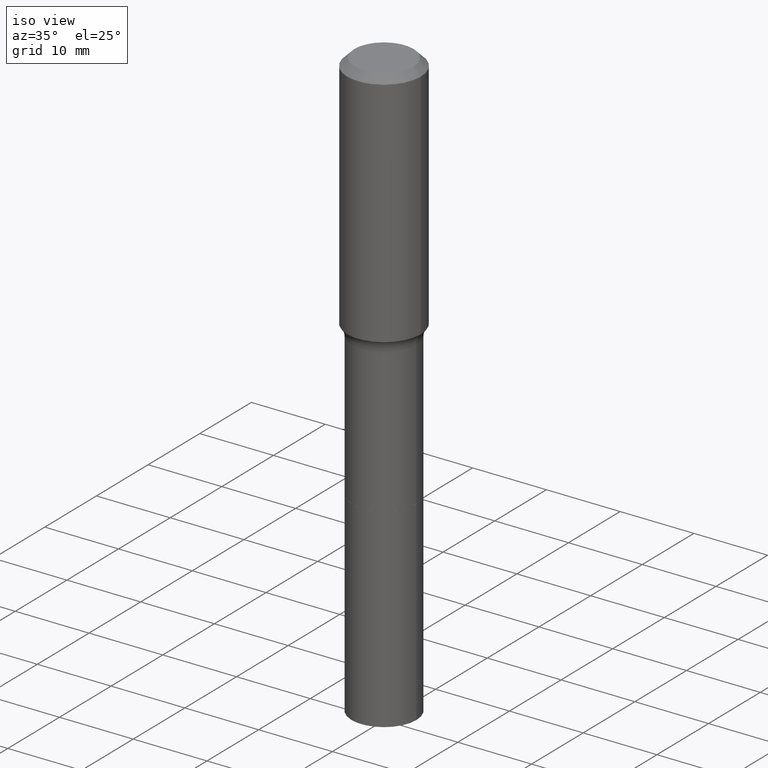
[diagram: clean part render]
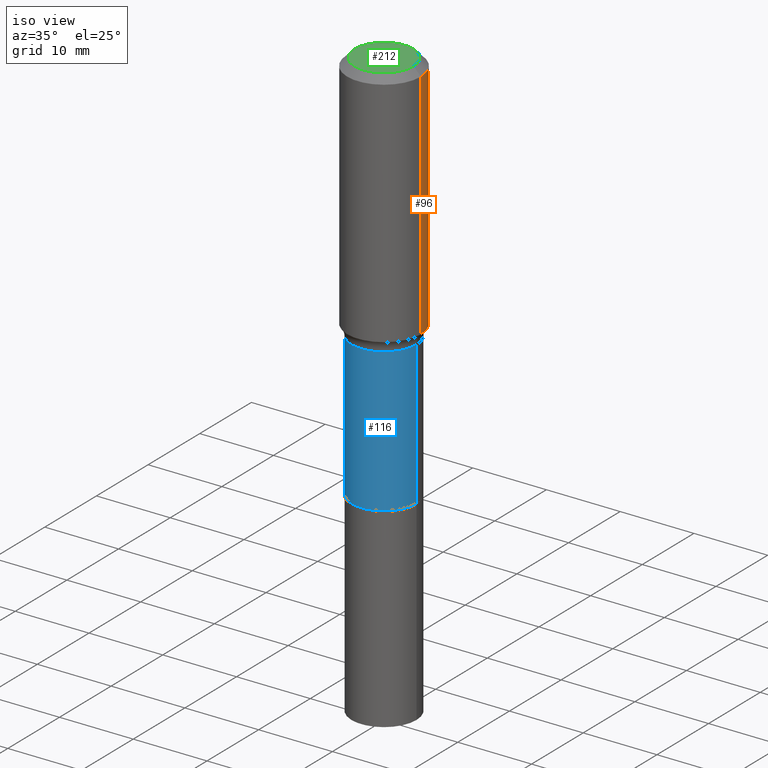
[diagram: same view with three faces highlighted in distinct colors, each labeled with its STEP entity id]
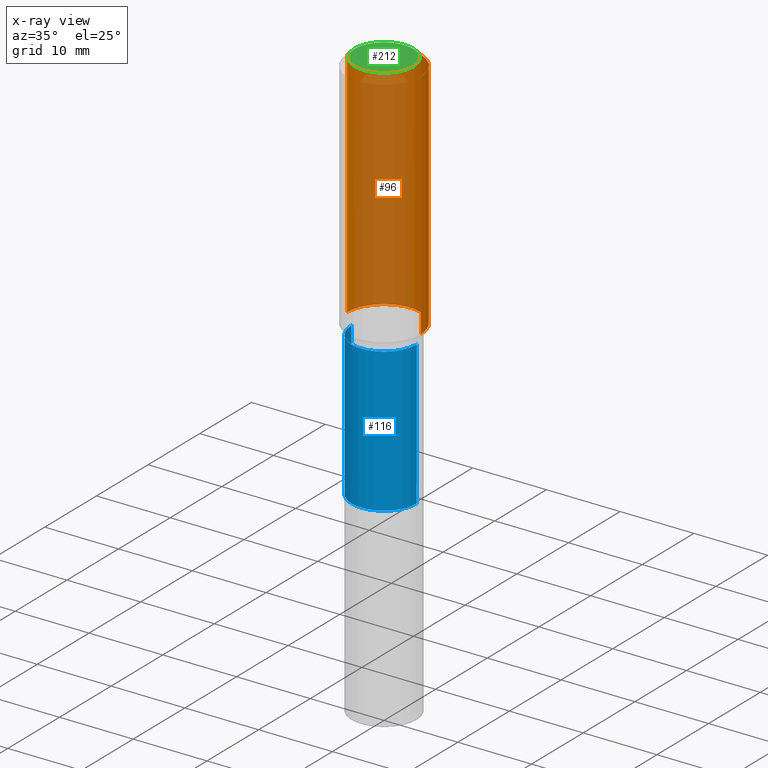
[diagram: x-ray of the same camera — body ghosted, the three highlighted faces saturated]
A machine part, iso view with three faces highlighted in distinct colors.
The next image is the same camera in x-ray (body ghosted, the three faces saturated) — at least one of them is partly hidden behind the body in this view.
Their STEP definitions:

[orange] entity #96 — the highlighted cylindrical surface (partial cylindrical patch) has radius 5 mm, axis along (-0, 0, 1).
#6 = EDGE_CURVE ( 'NONE', #451, #30, #44, .T. ) ;
#7 = LINE ( 'NONE', #236, #80 ) ;
#11 = DIRECTION ( 'NONE',  ( -2.445468806185136597E-29, 3.491481338843145583E-15, 1.000000000000000000 ) ) ;
#30 = VERTEX_POINT ( 'NONE', #361 ) ;
#44 = CIRCLE ( 'NONE', #323, 0.1968500000000000527 ) ;
#71 = CARTESIAN_POINT ( 'NONE',  ( -0.1968500000000001915, -3.076604992838836493E-15, -1.281779260394221964 ) ) ;
#80 = VECTOR ( 'NONE', #317, 39.37007874015748143 ) ;
#92 = DIRECTION ( 'NONE',  ( 1.000000000000000000, -6.982962677686266711E-15, 0.000000000000000000 ) ) ;
#95 = DIRECTION ( 'NONE',  ( -2.445468806185136877E-29, 3.491481338843145188E-15, 1.000000000000000000 ) ) ;
#96 = ADVANCED_FACE ( 'NONE', ( #292 ), #136, .T. ) ;
#97 = DIRECTION ( 'NONE',  ( -2.445468806185136597E-29, 3.491481338843145583E-15, 1.000000000000000000 ) ) ;
#118 = EDGE_CURVE ( 'NONE', #205, #30, #502, .T. ) ;
#128 = CARTESIAN_POINT ( 'NONE',  ( 0.1968500000000000527, -1.512055823412797583E-15, -0.03937000000000030059 ) ) ;
#136 = CYLINDRICAL_SURFACE ( 'NONE', #370, 0.1968500000000001082 ) ;
#155 = EDGE_CURVE ( 'NONE', #410, #205, #177, .T. ) ;
#165 = ORIENTED_EDGE ( 'NONE', *, *, #155, .T. ) ;
#176 = DIRECTION ( 'NONE',  ( -2.445468806185136597E-29, 3.491481338843145583E-15, 1.000000000000000000 ) ) ;
#177 = CIRCLE ( 'NONE', #267, 0.1968500000000001915 ) ;
#198 = ORIENTED_EDGE ( 'NONE', *, *, #118, .T. ) ;
#205 = VERTEX_POINT ( 'NONE', #71 ) ;
#207 = VECTOR ( 'NONE', #95, 39.37007874015748143 ) ;
#236 = CARTESIAN_POINT ( 'NONE',  ( 0.1968500000000001082, -1.374596203102542397E-15, 9.598753983154305062E-30 ) ) ;
#256 = ORIENTED_EDGE ( 'NONE', *, *, #6, .F. ) ;
#267 = AXIS2_PLACEMENT_3D ( 'NONE', #460, #97, #92 ) ;
#292 = FACE_OUTER_BOUND ( 'NONE', #516, .T. ) ;
#317 = DIRECTION ( 'NONE',  ( -2.445468806185136877E-29, 3.491481338843145188E-15, 1.000000000000000000 ) ) ;
#322 = CARTESIAN_POINT ( 'NONE',  ( 0.000000000000000000, 0.000000000000000000, 0.000000000000000000 ) ) ;
#323 = AXIS2_PLACEMENT_3D ( 'NONE', #488, #11, #403 ) ;
#326 = CARTESIAN_POINT ( 'NONE',  ( -0.1968500000000001082, 1.398703375343757985E-15, -9.682923725166787881E-30 ) ) ;
#361 = CARTESIAN_POINT ( 'NONE',  ( -0.1968500000000000527, -9.076806189026671431E-16, -0.03937000000000030059 ) ) ;
#370 = AXIS2_PLACEMENT_3D ( 'NONE', #322, #176, #376 ) ;
#376 = DIRECTION ( 'NONE',  ( 1.000000000000000000, -6.982962677686266711E-15, 4.876176775795935793E-29 ) ) ;
#378 = EDGE_CURVE ( 'NONE', #410, #451, #7, .T. ) ;
#403 = DIRECTION ( 'NONE',  ( 1.000000000000000000, -6.982962677686266711E-15, 0.000000000000000000 ) ) ;
#410 = VERTEX_POINT ( 'NONE', #461 ) ;
#451 = VERTEX_POINT ( 'NONE', #128 ) ;
#460 = CARTESIAN_POINT ( 'NONE',  ( 3.134551197709125186E-29, -4.475308368182595464E-15, -1.281779260394221964 ) ) ;
#461 = CARTESIAN_POINT ( 'NONE',  ( 0.1968500000000001915, -5.849904571285137861E-15, -1.281779260394221964 ) ) ;
#465 = ORIENTED_EDGE ( 'NONE', *, *, #378, .F. ) ;
#488 = CARTESIAN_POINT ( 'NONE',  ( 9.627810689950955906E-31, -1.374596203102556794E-16, -0.03937000000000030059 ) ) ;
#502 = LINE ( 'NONE', #326, #207 ) ;
#516 = EDGE_LOOP ( 'NONE', ( #165, #198, #256, #465 ) ) ;

[blue] entity #116 — the highlighted cylindrical surface (partial cylindrical patch) has radius 4.4005 mm, axis along (-0, 0, 1).
#13 = VERTEX_POINT ( 'NONE', #356 ) ;
#54 = CYLINDRICAL_SURFACE ( 'NONE', #408, 0.1732499999999999318 ) ;
#74 = ORIENTED_EDGE ( 'NONE', *, *, #459, .T. ) ;
#94 = DIRECTION ( 'NONE',  ( 1.000000000000000000, -6.982962677686266711E-15, 0.000000000000000000 ) ) ;
#98 = LINE ( 'NONE', #330, #316 ) ;
#116 = ADVANCED_FACE ( 'NONE', ( #172 ), #54, .T. ) ;
#121 = VECTOR ( 'NONE', #210, 39.37007874015748143 ) ;
#132 = DIRECTION ( 'NONE',  ( -2.445468806185136877E-29, 3.491481338843145188E-15, 1.000000000000000000 ) ) ;
#133 = DIRECTION ( 'NONE',  ( 1.000000000000000000, -6.982962677686267499E-15, 4.876176775795935793E-29 ) ) ;
#138 = EDGE_CURVE ( 'NONE', #191, #13, #98, .T. ) ;
#139 = CARTESIAN_POINT ( 'NONE',  ( 3.273504543959424474E-29, -4.673696920175435525E-15, -1.338600000000000234 ) ) ;
#172 = FACE_OUTER_BOUND ( 'NONE', #350, .T. ) ;
#191 = VERTEX_POINT ( 'NONE', #372 ) ;
#192 = DIRECTION ( 'NONE',  ( 1.000000000000000000, -6.982962677686269866E-15, 0.000000000000000000 ) ) ;
#210 = DIRECTION ( 'NONE',  ( -2.445468806185136877E-29, 3.491481338843145188E-15, 1.000000000000000000 ) ) ;
#226 = AXIS2_PLACEMENT_3D ( 'NONE', #418, #327, #94 ) ;
#228 = VERTEX_POINT ( 'NONE', #504 ) ;
#230 = ORIENTED_EDGE ( 'NONE', *, *, #241, .F. ) ;
#241 = EDGE_CURVE ( 'NONE', #13, #228, #299, .T. ) ;
#253 = CARTESIAN_POINT ( 'NONE',  ( 0.000000000000000000, 0.000000000000000000, 0.000000000000000000 ) ) ;
#283 = DIRECTION ( 'NONE',  ( -2.445468806185136597E-29, 3.491481338843145583E-15, 1.000000000000000000 ) ) ;
#299 = CIRCLE ( 'NONE', #434, 0.1732499999999998763 ) ;
#316 = VECTOR ( 'NONE', #132, 39.37007874015748143 ) ;
#327 = DIRECTION ( 'NONE',  ( -2.445468806185136597E-29, 3.491481338843145583E-15, 1.000000000000000000 ) ) ;
#329 = CARTESIAN_POINT ( 'NONE',  ( 0.1732499999999999596, -8.563207131646695360E-15, -2.106100000000000527 ) ) ;
#330 = CARTESIAN_POINT ( 'NONE',  ( -0.1732499999999999318, 1.231015289704373088E-15, -8.522055043866620619E-30 ) ) ;
#350 = EDGE_LOOP ( 'NONE', ( #386, #429, #74, #230 ) ) ;
#356 = CARTESIAN_POINT ( 'NONE',  ( -0.1732499999999998763, -4.782537594252119872E-15, -1.338600000000000234 ) ) ;
#372 = CARTESIAN_POINT ( 'NONE',  ( -0.1732499999999999596, -4.782537594252119083E-15, -2.106100000000000527 ) ) ;
#386 = ORIENTED_EDGE ( 'NONE', *, *, #138, .F. ) ;
#408 = AXIS2_PLACEMENT_3D ( 'NONE', #253, #283, #133 ) ;
#411 = EDGE_CURVE ( 'NONE', #191, #510, #457, .T. ) ;
#412 = CARTESIAN_POINT ( 'NONE',  ( 0.1732499999999999318, -1.209798283909145361E-15, 8.447976264066455874E-30 ) ) ;
#418 = CARTESIAN_POINT ( 'NONE',  ( 5.150401852706517686E-29, -7.353408847737550000E-15, -2.106100000000000527 ) ) ;
#429 = ORIENTED_EDGE ( 'NONE', *, *, #411, .T. ) ;
#434 = AXIS2_PLACEMENT_3D ( 'NONE', #139, #511, #192 ) ;
#457 = CIRCLE ( 'NONE', #226, 0.1732499999999999596 ) ;
#459 = EDGE_CURVE ( 'NONE', #510, #228, #496, .T. ) ;
#496 = LINE ( 'NONE', #412, #121 ) ;
#504 = CARTESIAN_POINT ( 'NONE',  ( 0.1732499999999998763, -5.883495204084580886E-15, -1.338600000000000234 ) ) ;
#510 = VERTEX_POINT ( 'NONE', #329 ) ;
#511 = DIRECTION ( 'NONE',  ( -2.445468806185136597E-29, 3.491481338843145583E-15, 1.000000000000000000 ) ) ;

[green] entity #212 — the highlighted planar face has unit normal (0, -0, -1).
#12 = DIRECTION ( 'NONE',  ( 1.000000000000000000, -6.982962677686265922E-15, 4.876223630392693006E-29 ) ) ;
#29 = CARTESIAN_POINT ( 'NONE',  ( 0.1574800000000000089, -1.284169937930321386E-15, 3.855188123724205385E-18 ) ) ;
#91 = CARTESIAN_POINT ( 'NONE',  ( -0.1574800000000000089, 1.168406772637159815E-15, 3.855188123707939751E-18 ) ) ;
#114 = DIRECTION ( 'NONE',  ( -2.445468806185136597E-29, 3.491481338843145583E-15, 1.000000000000000000 ) ) ;
#148 = DIRECTION ( 'NONE',  ( -1.000000000000000000, 6.982962677686265922E-15, -4.876176775795935793E-29 ) ) ;
#150 = FACE_OUTER_BOUND ( 'NONE', #160, .T. ) ;
#151 = ORIENTED_EDGE ( 'NONE', *, *, #399, .T. ) ;
#160 = EDGE_LOOP ( 'NONE', ( #151, #344 ) ) ;
#190 = CARTESIAN_POINT ( 'NONE',  ( -9.427742298522567634E-47, 1.346031739168368355E-32, 3.855188123715870730E-18 ) ) ;
#203 = CARTESIAN_POINT ( 'NONE',  ( -9.427742298522567634E-47, 1.346031739168368355E-32, 3.855188123715870730E-18 ) ) ;
#212 = ADVANCED_FACE ( 'NONE', ( #150 ), #346, .F. ) ;
#217 = AXIS2_PLACEMENT_3D ( 'NONE', #190, #114, #268 ) ;
#242 = VERTEX_POINT ( 'NONE', #29 ) ;
#268 = DIRECTION ( 'NONE',  ( 1.000000000000000000, -6.982962677686265922E-15, 4.876223630392693006E-29 ) ) ;
#290 = EDGE_CURVE ( 'NONE', #242, #439, #333, .T. ) ;
#291 = AXIS2_PLACEMENT_3D ( 'NONE', #464, #302, #148 ) ;
#302 = DIRECTION ( 'NONE',  ( 2.438088387897960049E-29, -3.491481338843145188E-15, -1.000000000000000000 ) ) ;
#333 = CIRCLE ( 'NONE', #217, 0.1574800000000000089 ) ;
#344 = ORIENTED_EDGE ( 'NONE', *, *, #290, .T. ) ;
#346 = PLANE ( 'NONE',  #291 ) ;
#354 = AXIS2_PLACEMENT_3D ( 'NONE', #203, #450, #12 ) ;
#388 = CIRCLE ( 'NONE', #354, 0.1574800000000000089 ) ;
#399 = EDGE_CURVE ( 'NONE', #439, #242, #388, .T. ) ;
#439 = VERTEX_POINT ( 'NONE', #91 ) ;
#450 = DIRECTION ( 'NONE',  ( -2.445468806185136597E-29, 3.491481338843145583E-15, 1.000000000000000000 ) ) ;
#464 = CARTESIAN_POINT ( 'NONE',  ( -4.713871149261283817E-47, 6.730158695841841775E-33, 1.927594061857935365E-18 ) ) ;